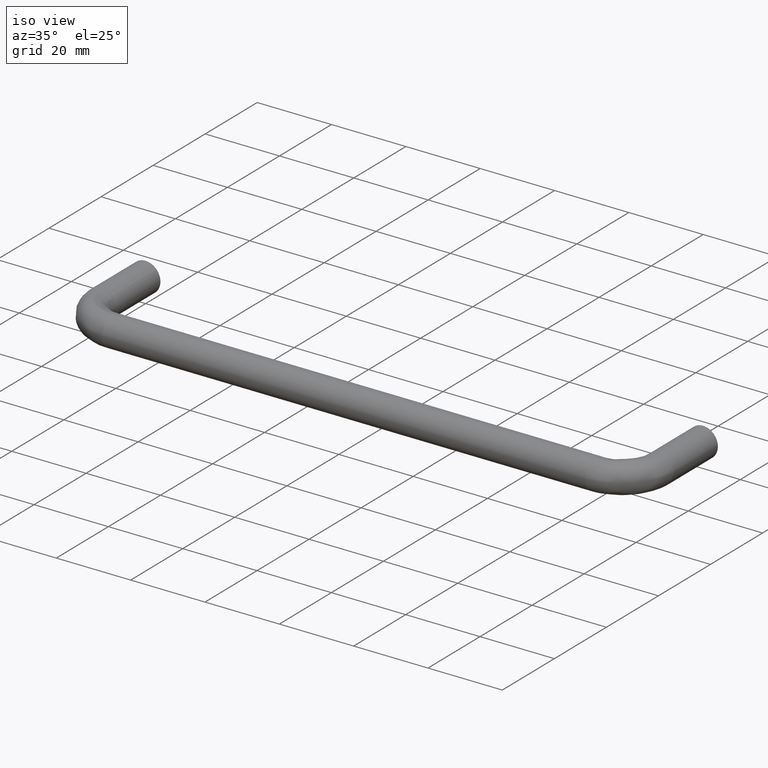
[diagram: clean part render]
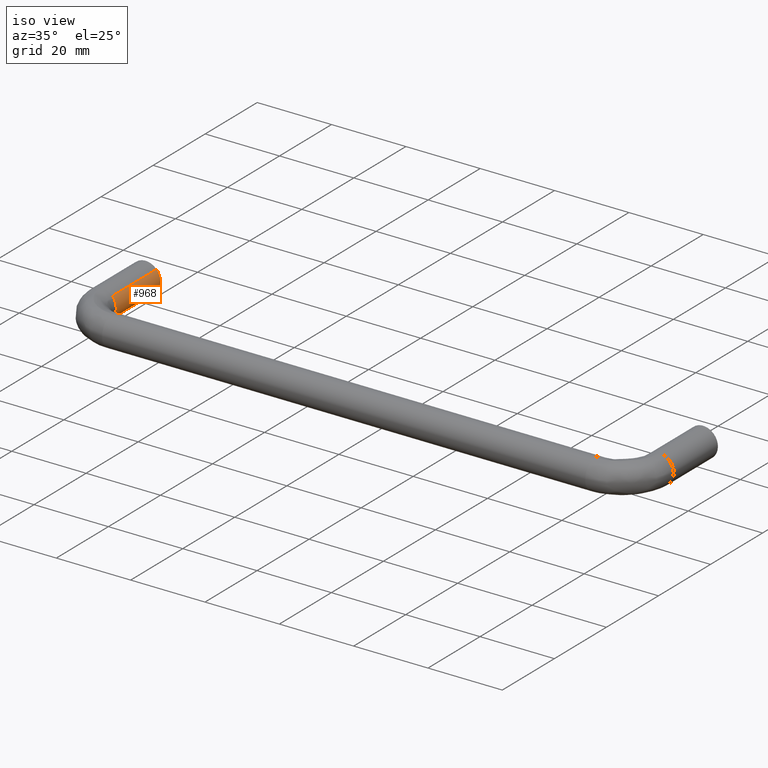
[diagram: same view with one face highlighted and labeled with its STEP entity id]
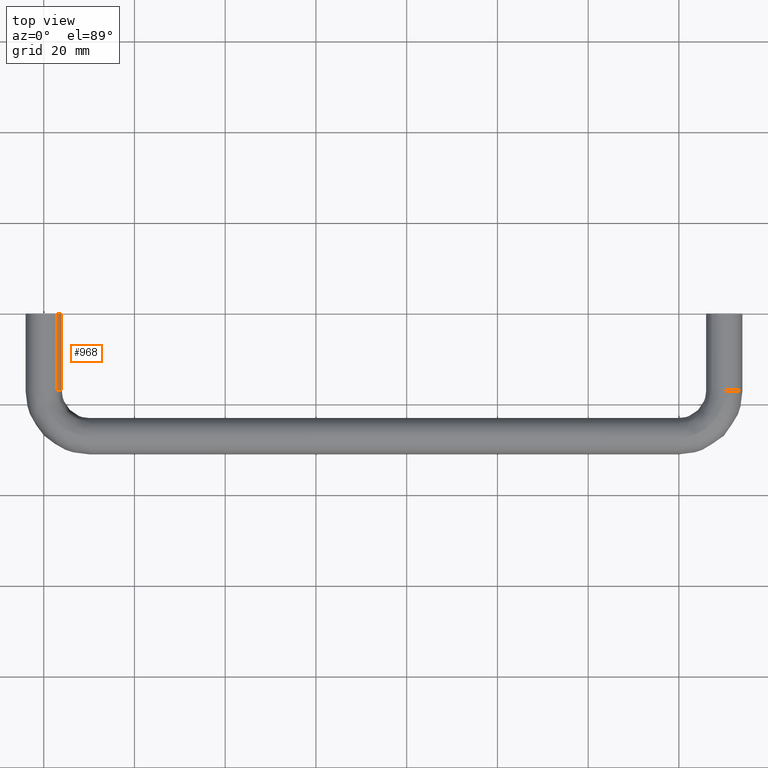
[diagram: same view with one face highlighted and labeled with its STEP entity id]
A machine part, iso view. The second image highlights one B-rep face of the part: STEP entity #968.
A second angle (top view) of the same face is appended — the face is thin or edge-on in the first view.
In plain terms, the highlighted face is a freeform B-spline surface patch.
Its self-contained STEP definition (entity closure, byte-faithful):
#870=CARTESIAN_POINT('',(1.905637401786337,0.425000000067290,-3.517075641449033));
#871=CARTESIAN_POINT('',(1.921277778701217,0.425000000067290,-3.508419821064449));
#872=CARTESIAN_POINT('',(2.352302438949466,0.425000000067290,-3.269878764110414));
#873=CARTESIAN_POINT('',(2.702360830462641,0.425000000067290,-2.949109347240495));
#874=CARTESIAN_POINT('',(5.651470177703135,0.425000000067291,-0.246748516777854));
#875=CARTESIAN_POINT('',(2.938045701825943,0.425000000067290,2.714434680756355));
#876=CARTESIAN_POINT('',(2.927019516742270,0.425000000067290,2.726467650272531));
#877=CARTESIAN_POINT('',(1.905637401786339,-17.435625002760545,-3.517075641449033));
#878=CARTESIAN_POINT('',(1.921277778701219,-17.435625002760542,-3.508419821064449));
#879=CARTESIAN_POINT('',(2.352302438949469,-17.435625002760535,-3.269878764110414));
#880=CARTESIAN_POINT('',(2.702360830462643,-17.435625002760538,-2.949109347240495));
#881=CARTESIAN_POINT('',(5.651470177703138,-17.435625002760535,-0.246748516777854));
#882=CARTESIAN_POINT('',(2.938045701825946,-17.435625002760531,2.714434680756355));
#883=CARTESIAN_POINT('',(2.927019516742274,-17.435625002760538,2.726467650272531));
#891=(BOUNDED_SURFACE()B_SPLINE_SURFACE(2,1,((#870,#877),(#871,#878),(#872,#879),(#873,#880),(#874,#881),(#875,#882),(#876,#883)),.UNSPECIFIED.,.F.,.F.,.U.)B_SPLINE_SURFACE_WITH_KNOTS((3,1,2,1,3),(2,2),(0.0,0.038442938808427,1.098829658483551,7.726246656453070,7.764683818591236),(0.0,17.860625002827831),.UNSPECIFIED.)GEOMETRIC_REPRESENTATION_ITEM()RATIONAL_B_SPLINE_SURFACE(((0.918959725451729,0.918959725451729),(0.920115014117336,0.920115014117336),(0.953137084989848,0.953137084989848),(1.0,1.0),(0.707106781186548,0.707106781186548),(1.001698698624842,1.001698698624842),(1.003397397249683,1.003397397249683)))REPRESENTATION_ITEM('')SURFACE());
#892=CARTESIAN_POINT('',(1.936875758742529,-17.0,-3.499787464287286));
#893=VERTEX_POINT('',#892);
#894=CARTESIAN_POINT('',(4.000000000000002,-17.0,0.0));
#895=VERTEX_POINT('',#894);
#896=CARTESIAN_POINT('',(1.936875758742530,-16.999999999999993,-3.499787464287285));
#897=CARTESIAN_POINT('',(4.000000000000002,-17.000000000000004,-2.357999464034285));
#898=CARTESIAN_POINT('',(4.000000000000002,-17.0,0.0));
#906=(BOUNDED_CURVE()B_SPLINE_CURVE(2,(#896,#897,#898),.UNSPECIFIED.,.F.,.U.)B_SPLINE_CURVE_WITH_KNOTS((3,3),(0.332484149575816,0.500000000000000),.UNSPECIFIED.)CURVE()GEOMETRIC_REPRESENTATION_ITEM()RATIONAL_B_SPLINE_CURVE((0.870495248545805,0.803742973467952,1.0))REPRESENTATION_ITEM(''));
#907=EDGE_CURVE('',#893,#895,#906,.T.);
#908=ORIENTED_EDGE('',*,*,#907,.F.);
#909=CARTESIAN_POINT('',(1.936878929040470,0.0,-3.499785709759819));
#910=VERTEX_POINT('',#909);
#911=CARTESIAN_POINT('',(1.936878929040470,0.0,-3.499785709759819));
#912=CARTESIAN_POINT('',(1.936875758742529,-17.0,-3.499787464287286));
#913=QUASI_UNIFORM_CURVE('',1,(#911,#912),.UNSPECIFIED.,.F.,.U.);
#914=EDGE_CURVE('',#910,#893,#913,.T.);
#915=ORIENTED_EDGE('',*,*,#914,.F.);
#916=CARTESIAN_POINT('',(4.0,0.0,0.0));
#917=VERTEX_POINT('',#916);
#918=CARTESIAN_POINT('',(1.936878929040471,0.0,-3.499785709759819));
#919=CARTESIAN_POINT('',(4.000000000000001,0.0,-2.357997022721315));
#920=CARTESIAN_POINT('',(4.0,0.0,0.0));
#928=(BOUNDED_CURVE()B_SPLINE_CURVE(2,(#918,#919,#920),.UNSPECIFIED.,.F.,.U.)B_SPLINE_CURVE_WITH_KNOTS((3,3),(0.332484288972660,0.500000000000000),.UNSPECIFIED.)CURVE()GEOMETRIC_REPRESENTATION_ITEM()RATIONAL_B_SPLINE_CURVE((0.870495137451348,0.803743136781512,1.0))REPRESENTATION_ITEM(''));
#929=EDGE_CURVE('',#910,#917,#928,.T.);
#930=ORIENTED_EDGE('',*,*,#929,.T.);
#931=CARTESIAN_POINT('',(2.949110740387567,5.551115E-017,2.702359310107826));
#932=VERTEX_POINT('',#931);
#933=CARTESIAN_POINT('',(4.0,0.0,0.0));
#934=CARTESIAN_POINT('',(4.000000000000001,0.0,1.555513740428500));
#935=CARTESIAN_POINT('',(2.949110740387567,5.551115E-017,2.702359310107826));
#943=(BOUNDED_CURVE()B_SPLINE_CURVE(2,(#933,#934,#935),.UNSPECIFIED.,.F.,.U.)B_SPLINE_CURVE_WITH_KNOTS((3,3),(0.500000000000000,0.618415131259578),.UNSPECIFIED.)CURVE()GEOMETRIC_REPRESENTATION_ITEM()RATIONAL_B_SPLINE_CURVE((1.0,0.861268044196659,0.853959790444123))REPRESENTATION_ITEM(''));
#944=EDGE_CURVE('',#917,#932,#943,.T.);
#945=ORIENTED_EDGE('',*,*,#944,.T.);
#946=CARTESIAN_POINT('',(2.949110422968060,-17.000000000488470,2.702359656111148));
#947=VERTEX_POINT('',#946);
#948=CARTESIAN_POINT('',(2.949110740387567,5.551115E-017,2.702359310107826));
#949=CARTESIAN_POINT('',(2.949110422968060,-17.000000000488470,2.702359656111148));
#950=QUASI_UNIFORM_CURVE('',1,(#948,#949),.UNSPECIFIED.,.F.,.U.);
#951=EDGE_CURVE('',#932,#947,#950,.T.);
#952=ORIENTED_EDGE('',*,*,#951,.T.);
#953=CARTESIAN_POINT('',(4.000000000000002,-17.0,0.0));
#954=CARTESIAN_POINT('',(4.000000000000001,-17.000000000000007,1.555514010413053));
#955=CARTESIAN_POINT('',(2.949110422968061,-17.000000000488473,2.702359656111148));
#963=(BOUNDED_CURVE()B_SPLINE_CURVE(2,(#953,#954,#955),.UNSPECIFIED.,.F.,.U.)B_SPLINE_CURVE_WITH_KNOTS((3,3),(0.500000000000000,0.618415148961099),.UNSPECIFIED.)CURVE()GEOMETRIC_REPRESENTATION_ITEM()RATIONAL_B_SPLINE_CURVE((1.0,0.861268023458037,0.853959788259148))REPRESENTATION_ITEM(''));
#964=EDGE_CURVE('',#895,#947,#963,.T.);
#965=ORIENTED_EDGE('',*,*,#964,.F.);
#966=EDGE_LOOP('',(#908,#915,#930,#945,#952,#965));
#967=FACE_OUTER_BOUND('',#966,.T.);
#968=ADVANCED_FACE('',(#967),#891,.T.);